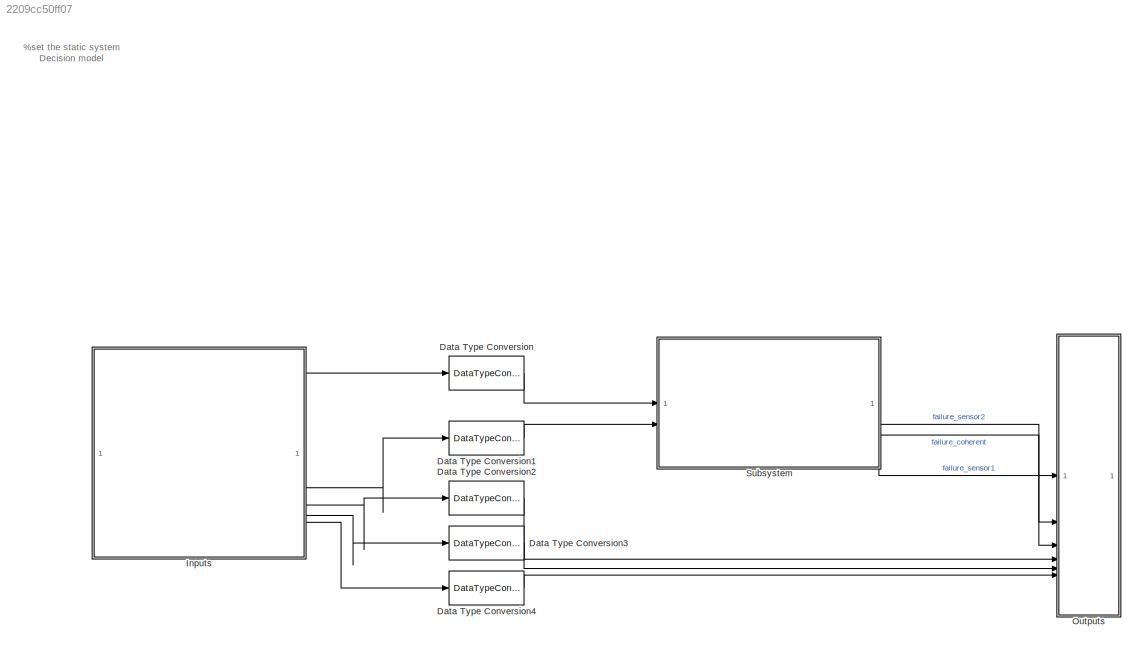
MODEL slx_2209cc50ff07
KIND model
CONFIG AbsTol = auto
CONFIG EnableMultiTasking = off
CONFIG FixedStep = auto
CONFIG MaxStep = auto
CONFIG MinStep = auto
CONFIG RelTol = 1e-3
CONFIG SampleTimeConstraint = Unconstrained
CONFIG SolverName = FixedStepAuto
CONFIG StartTime = 0.0
CONFIG StopTime = 2
BLOCK [DataTypeConversion] Data Type Conversion
  RndMeth = Floor
  SaturateOnIntegerOverflow = off
BLOCK [DataTypeConversion] Data Type Conversion1
  RndMeth = Floor
  SaturateOnIntegerOverflow = off
BLOCK [DataTypeConversion] Data Type Conversion2
  OutDataTypeStr = single
  RndMeth = Floor
  SaturateOnIntegerOverflow = off
BLOCK [DataTypeConversion] Data Type Conversion3
  OutDataTypeStr = single
  RndMeth = Floor
  SaturateOnIntegerOverflow = off
BLOCK [DataTypeConversion] Data Type Conversion4
  OutDataTypeStr = single
  RndMeth = Floor
  SaturateOnIntegerOverflow = off
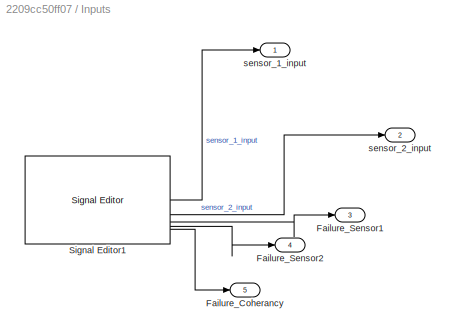
BLOCK [SubSystem] Inputs
BLOCK [Outport] Inputs/Failure_Coherancy
  Port = 5
BLOCK [Outport] Inputs/Failure_Sensor1
  Port = 3
BLOCK [Outport] Inputs/Failure_Sensor2
  Port = 4
BLOCK [Reference] Inputs/Signal Editor1  REF=SignalEditorBlockLib/Signal Editor
  LibrarySourceBlock = simulink/Sources/Signal Editor
  SourceBlock = SignalEditorBlockLib/Signal Editor
  SourceType = SignalEditor
  UserDataPersistent = on
BLOCK [Outport] Inputs/sensor_1_input
BLOCK [Outport] Inputs/sensor_2_input
  Port = 2
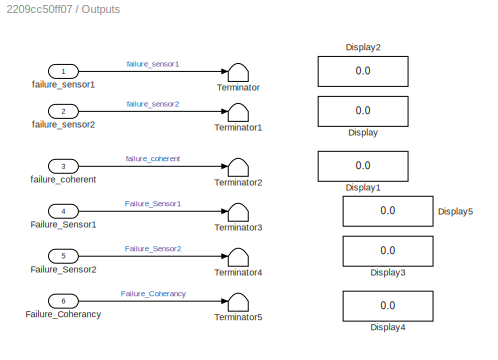
BLOCK [SubSystem] Outputs
  TreatAsAtomicUnit = on
BLOCK [Display] Outputs/Display
  Commented = on
  Decimation = 1
BLOCK [Display] Outputs/Display1
  Commented = on
  Decimation = 1
BLOCK [Display] Outputs/Display2
  Commented = on
  Decimation = 1
BLOCK [Display] Outputs/Display3
  Commented = on
  Decimation = 1
BLOCK [Display] Outputs/Display4
  Commented = on
  Decimation = 1
BLOCK [Display] Outputs/Display5
  Commented = on
  Decimation = 1
BLOCK [Inport] Outputs/Failure_Coherancy
  Port = 6
BLOCK [Inport] Outputs/Failure_Sensor1
  Port = 4
BLOCK [Inport] Outputs/Failure_Sensor2
  Port = 5
BLOCK [Terminator] Outputs/Terminator
BLOCK [Terminator] Outputs/Terminator1
BLOCK [Terminator] Outputs/Terminator2
BLOCK [Terminator] Outputs/Terminator3
BLOCK [Terminator] Outputs/Terminator4
BLOCK [Terminator] Outputs/Terminator5
BLOCK [Inport] Outputs/failure_coherent
  Port = 3
BLOCK [Inport] Outputs/failure_sensor1
BLOCK [Inport] Outputs/failure_sensor2
  Port = 2
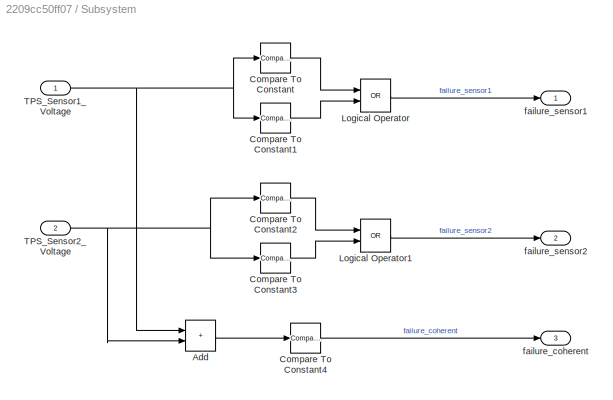
BLOCK [SubSystem] Subsystem
  TreatAsAtomicUnit = on
BLOCK [Sum] Subsystem/Add
  IconShape = rectangular
BLOCK [Reference] Subsystem/Compare To Constant  REF=simulink/Logic and Bit
Operations/Compare
To Constant
  SourceBlock = simulink/Logic and Bit\nOperations/Compare\nTo Constant
  SourceType = Compare To Constant
BLOCK [Reference] Subsystem/Compare To Constant1  REF=simulink/Logic and Bit
Operations/Compare
To Constant
  SourceBlock = simulink/Logic and Bit\nOperations/Compare\nTo Constant
  SourceType = Compare To Constant
BLOCK [Reference] Subsystem/Compare To Constant2  REF=simulink/Logic and Bit
Operations/Compare
To Constant
  SourceBlock = simulink/Logic and Bit\nOperations/Compare\nTo Constant
  SourceType = Compare To Constant
BLOCK [Reference] Subsystem/Compare To Constant3  REF=simulink/Logic and Bit
Operations/Compare
To Constant
  SourceBlock = simulink/Logic and Bit\nOperations/Compare\nTo Constant
  SourceType = Compare To Constant
BLOCK [Reference] Subsystem/Compare To Constant4  REF=simulink/Logic and Bit
Operations/Compare
To Constant
  SourceBlock = simulink/Logic and Bit\nOperations/Compare\nTo Constant
  SourceType = Compare To Constant
BLOCK [Logic] Subsystem/Logical Operator
  AllPortsSameDT = off
  Operator = OR
  OutDataTypeStr = boolean
BLOCK [Logic] Subsystem/Logical Operator1
  AllPortsSameDT = off
  Operator = OR
  OutDataTypeStr = boolean
BLOCK [Inport] Subsystem/TPS_Sensor1_Voltage
  OutDataTypeStr = single
BLOCK [Inport] Subsystem/TPS_Sensor2_Voltage
  OutDataTypeStr = single
  Port = 2
BLOCK [Outport] Subsystem/failure_coherent
  OutDataTypeStr = boolean
  Port = 3
BLOCK [Outport] Subsystem/failure_sensor1
  OutDataTypeStr = boolean
BLOCK [Outport] Subsystem/failure_sensor2
  OutDataTypeStr = boolean
  Port = 2
ANNOTATION (root): %set the static system Decision model
LINE Data Type Conversion1:1 -> Subsystem:2
LINE Data Type Conversion2:1 -> Outputs:4
LINE Data Type Conversion3:1 -> Outputs:5
LINE Data Type Conversion4:1 -> Outputs:6
LINE Data Type Conversion:1 -> Subsystem:1
LINE Inputs/Signal Editor1:1 -> Inputs/sensor_1_input:1
LINE Inputs/Signal Editor1:2 -> Inputs/sensor_2_input:1
LINE Inputs/Signal Editor1:3 -> Inputs/Failure_Sensor1:1
LINE Inputs/Signal Editor1:4 -> Inputs/Failure_Sensor2:1
LINE Inputs/Signal Editor1:5 -> Inputs/Failure_Coherancy:1
LINE Inputs:1 -> Data Type Conversion:1
LINE Inputs:2 -> Data Type Conversion1:1
LINE Inputs:3 -> Data Type Conversion2:1
LINE Inputs:4 -> Data Type Conversion3:1
LINE Inputs:5 -> Data Type Conversion4:1
LINE Outputs/Failure_Coherancy:1 -> Outputs/Terminator5:1
LINE Outputs/Failure_Sensor1:1 -> Outputs/Terminator3:1
LINE Outputs/Failure_Sensor2:1 -> Outputs/Terminator4:1
LINE Outputs/failure_coherent:1 -> Outputs/Terminator2:1
LINE Outputs/failure_sensor1:1 -> Outputs/Terminator:1
LINE Outputs/failure_sensor2:1 -> Outputs/Terminator1:1
LINE Subsystem/Add:1 -> Subsystem/Compare To Constant4:1
LINE Subsystem/Compare To Constant1:1 -> Subsystem/Logical Operator:2
LINE Subsystem/Compare To Constant2:1 -> Subsystem/Logical Operator1:1
LINE Subsystem/Compare To Constant3:1 -> Subsystem/Logical Operator1:2
LINE Subsystem/Compare To Constant4:1 -> Subsystem/failure_coherent:1
LINE Subsystem/Compare To Constant:1 -> Subsystem/Logical Operator:1
LINE Subsystem/Logical Operator1:1 -> Subsystem/failure_sensor2:1
LINE Subsystem/Logical Operator:1 -> Subsystem/failure_sensor1:1
NET Subsystem/TPS_Sensor1_Voltage:1 -> Subsystem/Add:1, Subsystem/Compare To Constant1:1, Subsystem/Compare To Constant:1
NET Subsystem/TPS_Sensor2_Voltage:1 -> Subsystem/Add:2, Subsystem/Compare To Constant2:1, Subsystem/Compare To Constant3:1
LINE Subsystem:1 -> Outputs:1
LINE Subsystem:2 -> Outputs:2
LINE Subsystem:3 -> Outputs:3
note: NET lines group one-source signal fan-out (src -> all destinations, sorted); 1:1 wires keep LINE
